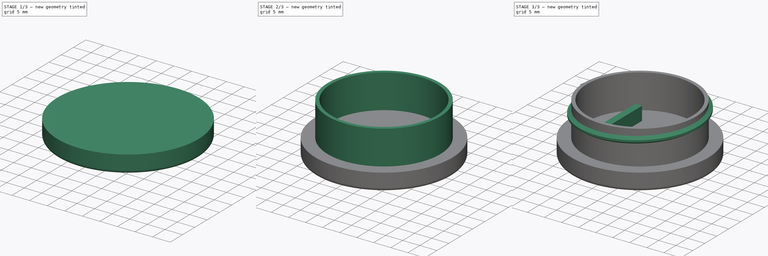
[diagram: build sequence overview — one tinted view per stage of 3, left to right]
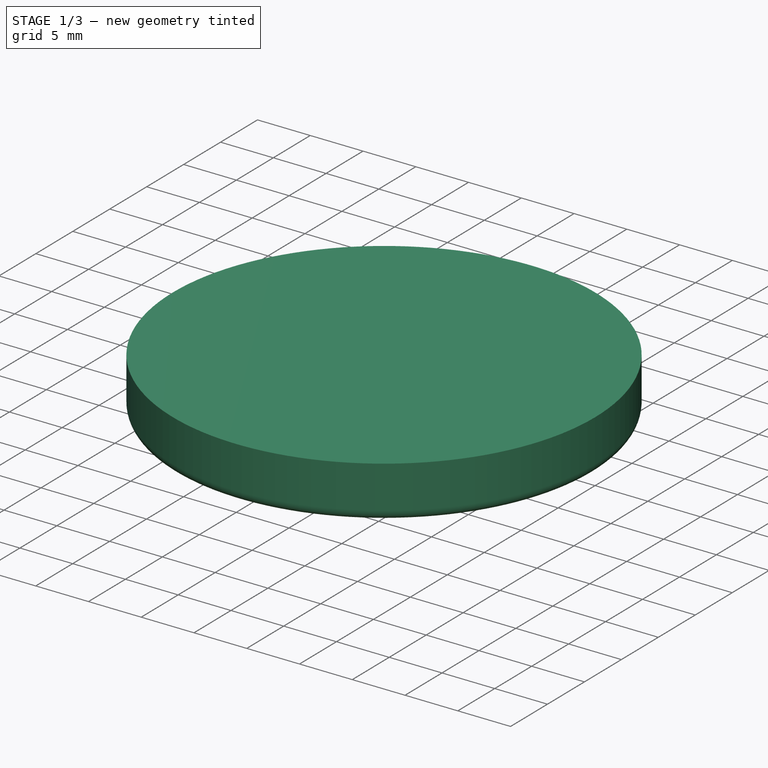
[diagram: stage 1 of 3 — iso view after this stage's code; geometry added in this stage tinted green]
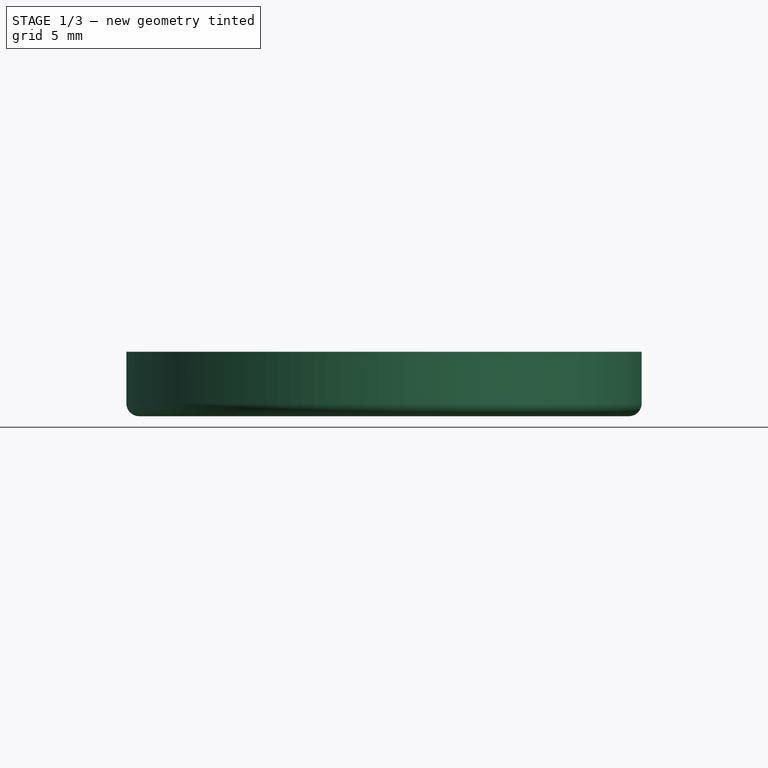
[diagram: stage 1 of 3 — front view after this stage's code; geometry added in this stage tinted green]
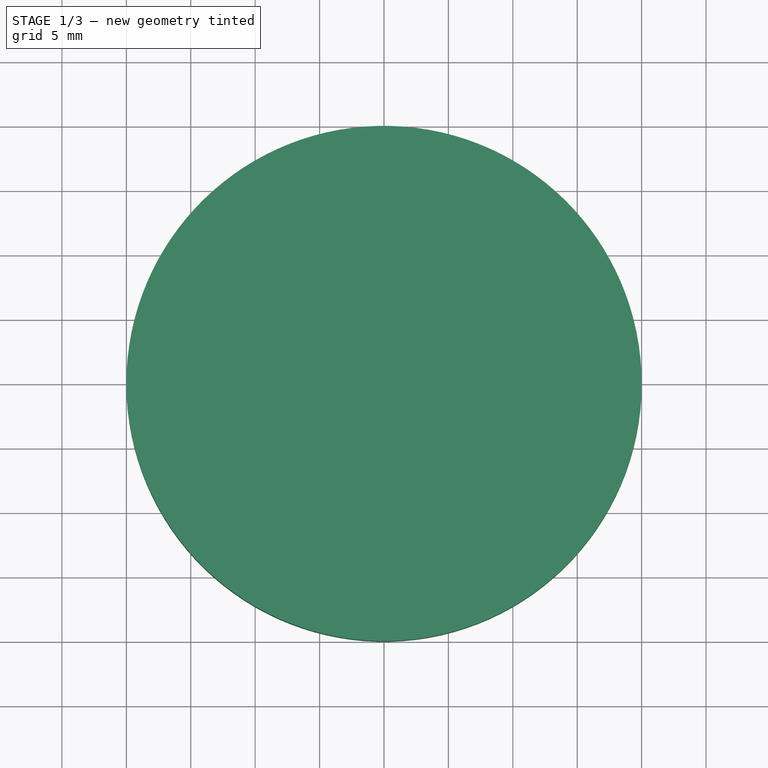
[diagram: stage 1 of 3 — top view after this stage's code; geometry added in this stage tinted green]
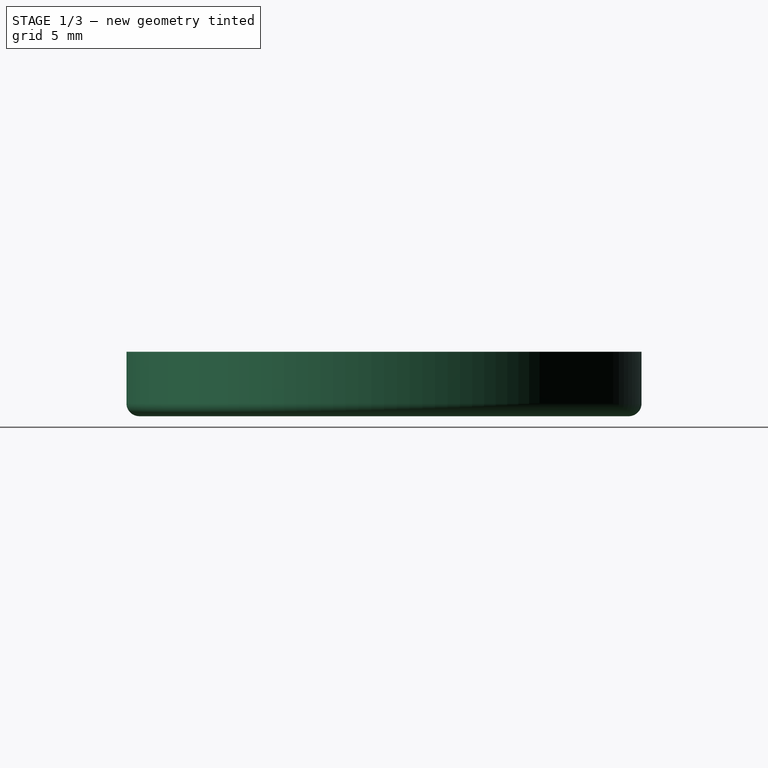
[diagram: stage 1 of 3 — right view after this stage's code; geometry added in this stage tinted green]
FCSTD DOCUMENT  (FreeCAD 0.20R29410 (Git))
Label: bikeHeadLightCap
License: All rights reserved
LicenseURL: http://en.wikipedia.org/wiki/All_rights_reserved
objects: Sketcher::SketchObject×4, PartDesign::Pad×3, PartDesign::Fillet×1, PartDesign::AdditiveHelix×1, PartDesign::Body×1, App::Part×1
note: 15 computed .brp shape members not serialized (recipe doc carries the construction recipe); baked Part::Feature solids carry a one-line shape summary decoded from their .brp

FEATURE [Sketcher::SketchObject] Sketch
  FullyConstrained = true
  MapMode = 5
  Support = -> [XY_Plane001]
  sketch-geometry (1):
    g0: Circle CenterX=0 CenterY=0 CenterZ=0 NormalX=0 NormalY=0 NormalZ=1 AngleXU=0 Radius=20
  constraints (2):
    c: Coincident(g0,g-1)
    c: Radius(g0) = 20
FEATURE [PartDesign::Pad] Pad
  Direction = (0,0,1)
  Length = 5
  Length2 = 10
  Profile = -> Sketch
  ReferenceAxis = -> Sketch [N_Axis]
  Type = 0
FEATURE [PartDesign::Fillet] Fillet
  Base = -> Pad [Edge2]
  BaseFeature = -> Pad
  Radius = 1
  SupportTransform = false
  UseAllEdges = false
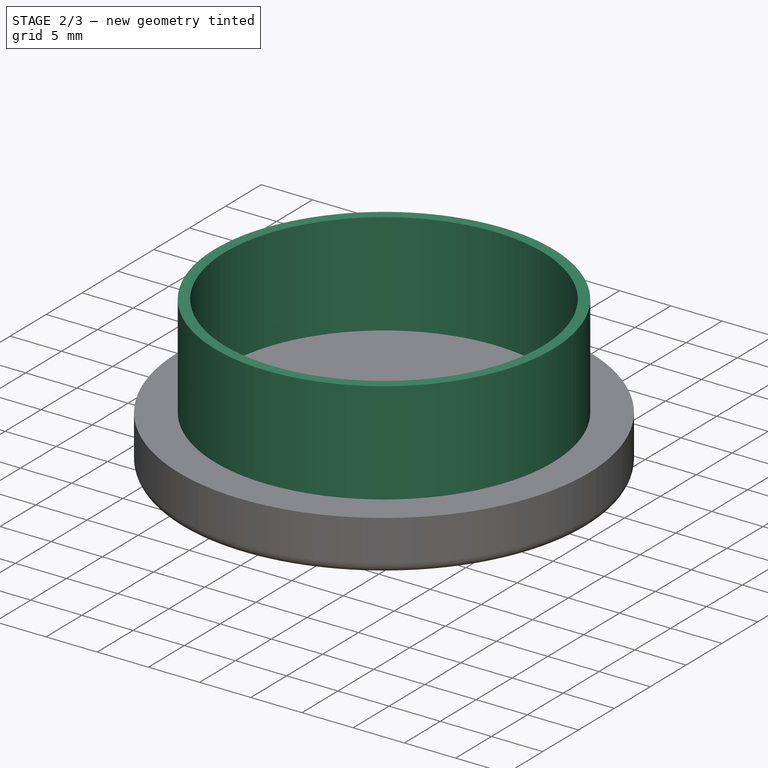
[diagram: stage 2 of 3 — iso view after this stage's code; geometry added in this stage tinted green]
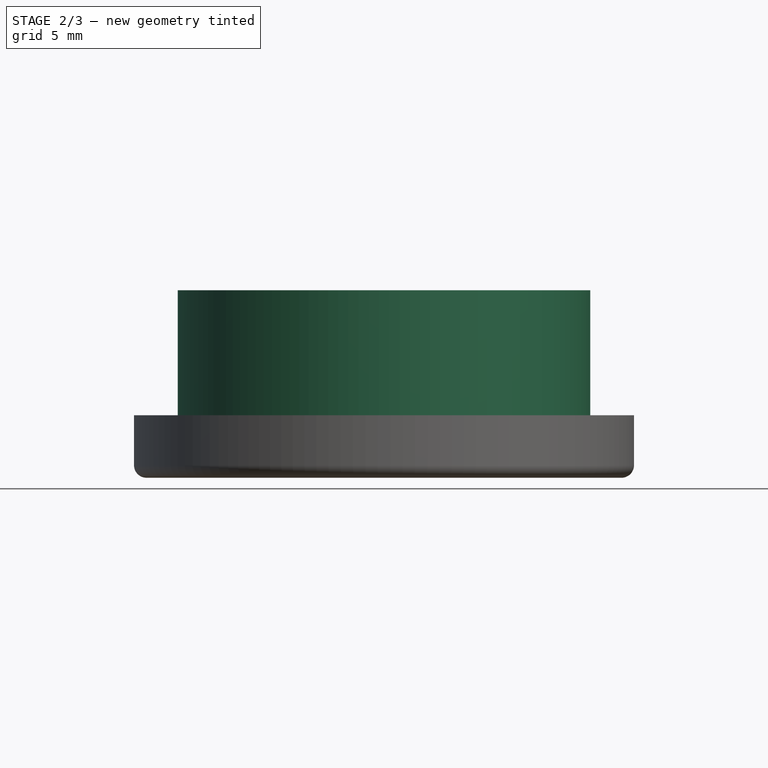
[diagram: stage 2 of 3 — front view after this stage's code; geometry added in this stage tinted green]
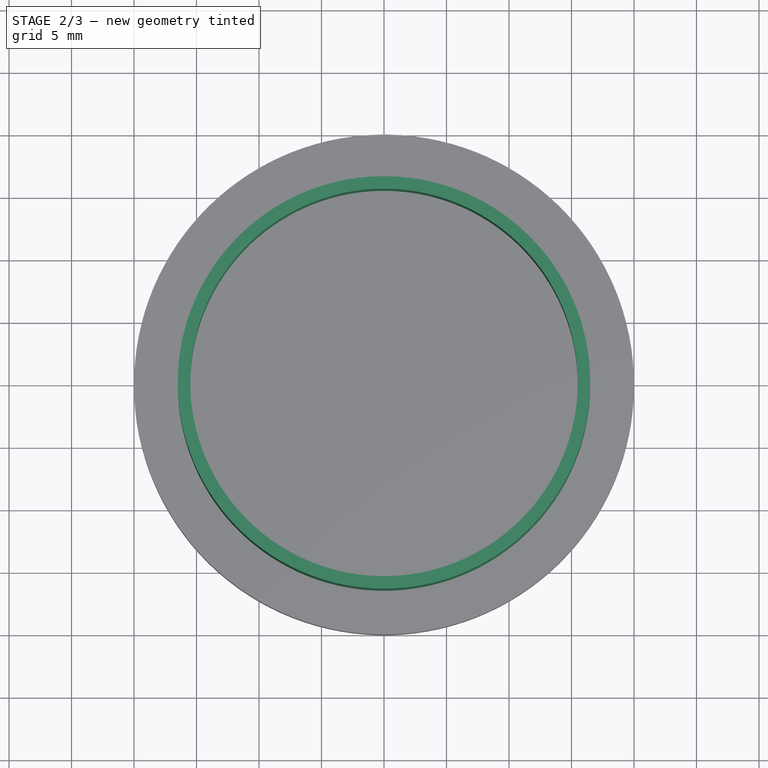
[diagram: stage 2 of 3 — top view after this stage's code; geometry added in this stage tinted green]
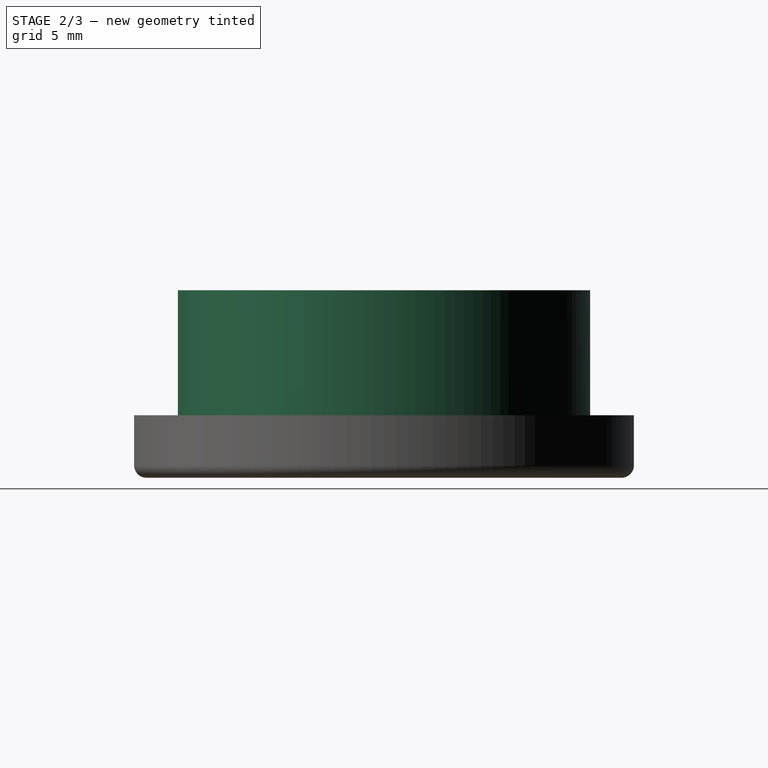
[diagram: stage 2 of 3 — right view after this stage's code; geometry added in this stage tinted green]
FEATURE [Sketcher::SketchObject] Sketch001
  FullyConstrained = true
  MapMode = 5
  Placement = pos=(0,0,5) rot=(0,0,1;0rad)
  Support = -> [Fillet]
  sketch-geometry (2):
    g0: Circle CenterX=0 CenterY=0 CenterZ=0 NormalX=0 NormalY=0 NormalZ=1 AngleXU=0 Radius=16.5
    g1: Circle CenterX=0 CenterY=0 CenterZ=0 NormalX=0 NormalY=0 NormalZ=1 AngleXU=0 Radius=15.5
  constraints (4):
    c: Coincident(g0,g-1)
    c: Coincident(g1,g0)
    c: Radius(g0) = 16.5
    c: Radius(g1) = 15.5
FEATURE [PartDesign::Pad] Pad001
  BaseFeature = -> Fillet
  Direction = (0,0,1)
  Length = 10
  Length2 = 10
  Profile = -> Sketch001
  ReferenceAxis = -> Sketch001 [N_Axis]
  Type = 0
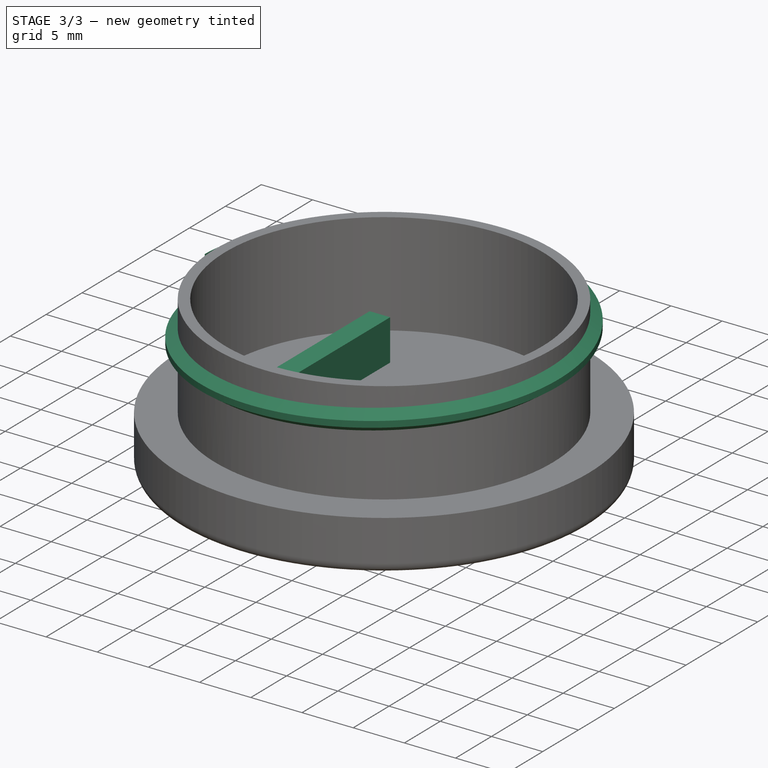
[diagram: stage 3 of 3 — iso view after this stage's code; geometry added in this stage tinted green]
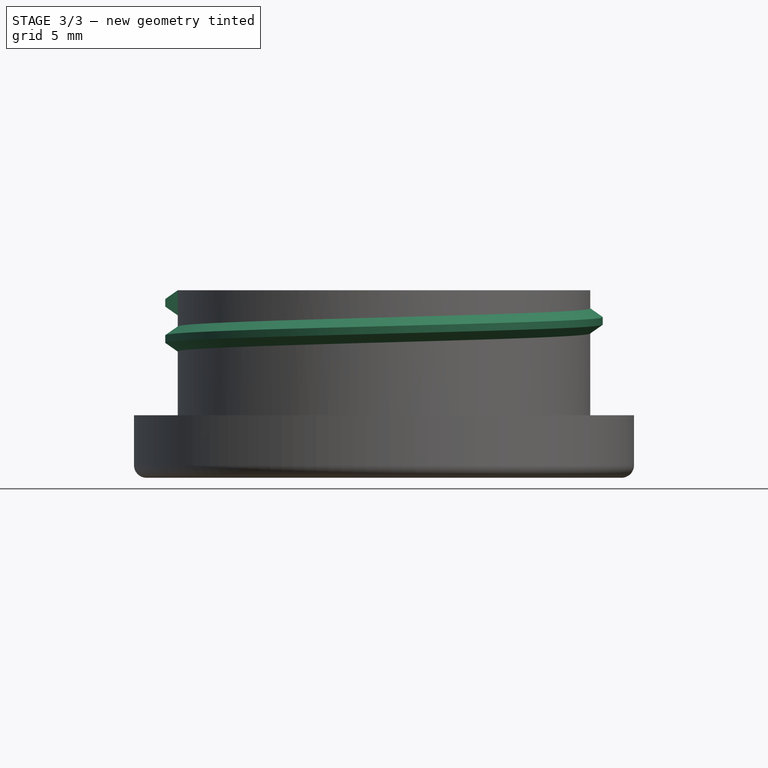
[diagram: stage 3 of 3 — front view after this stage's code; geometry added in this stage tinted green]
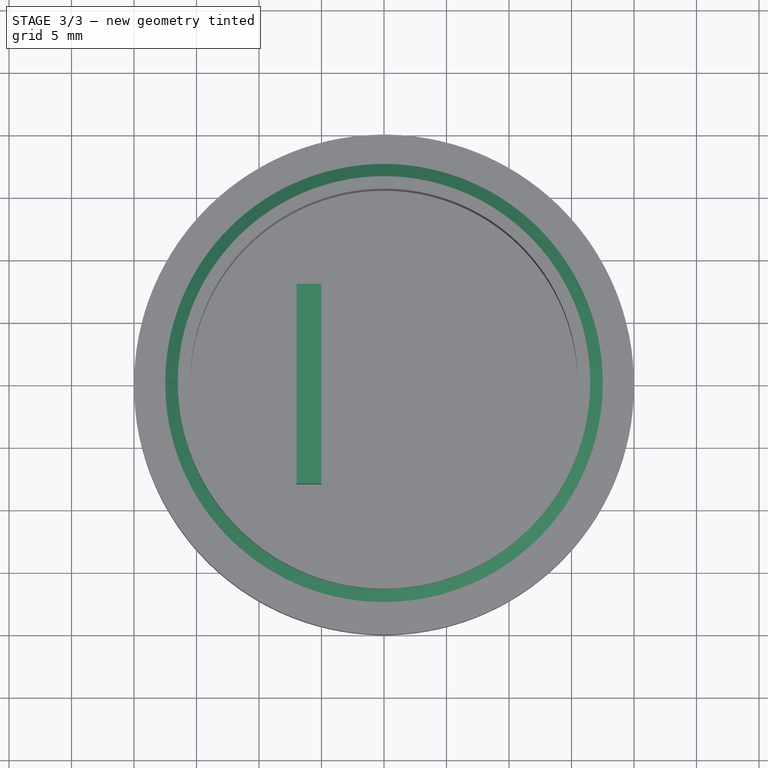
[diagram: stage 3 of 3 — top view after this stage's code; geometry added in this stage tinted green]
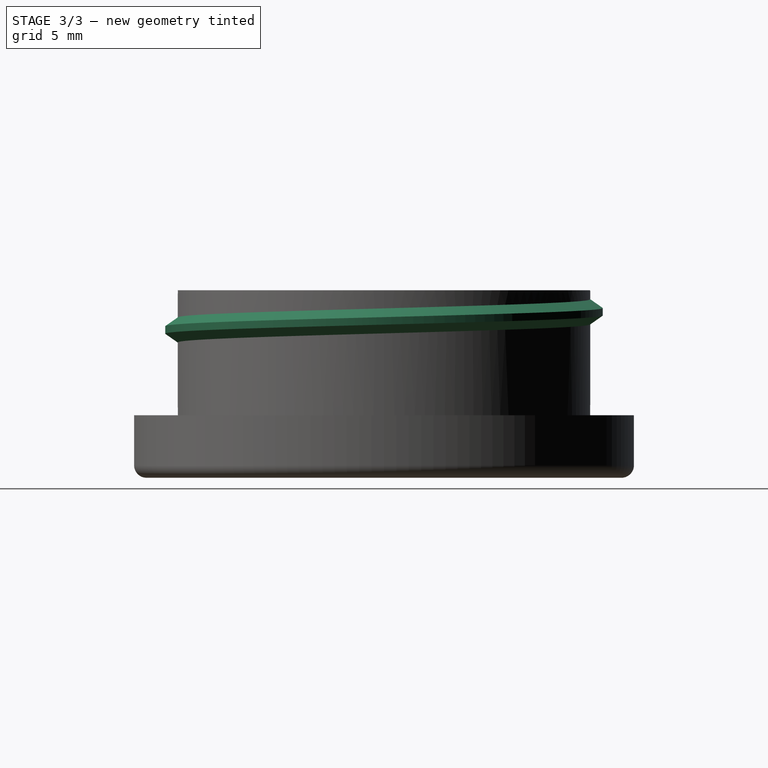
[diagram: stage 3 of 3 — right view after this stage's code; geometry added in this stage tinted green]
FEATURE [Sketcher::SketchObject] Sketch002
  FullyConstrained = true
  MapMode = 5
  Placement = pos=(0,0,0) rot=(1,0,0;1.5708rad)
  Support = -> [XZ_Plane001]
  sketch-geometry (4):
    g0: LineSegment StartX=-16.5 StartY=15 StartZ=0 EndX=-16.5 EndY=13 EndZ=0
    g1: LineSegment StartX=-16.5 StartY=15 StartZ=0 EndX=-17.5 EndY=14.3 EndZ=0
    g2: LineSegment StartX=-17.5 StartY=14.3 StartZ=0 EndX=-17.5 EndY=13.7 EndZ=0
    g3: LineSegment StartX=-17.5 StartY=13.7 StartZ=0 EndX=-16.5 EndY=13 EndZ=0
  constraints (12):
    c: Vertical(g2)
    c: Coincident(g2,g3)
    c: Coincident(g3,g0)
    c: Coincident(g0,g1)
    c: Coincident(g1,g2)
    c: Vertical(g0)
    c: DistanceY(g2,g2) = 0.6
    c: DistanceY(g0,g0) = 2
    c: DistanceY(g0,g2) = 0.7
    c: DistanceX(g2,g0) = 1
    c: DistanceX(g0,g-1) = 16.5
    c: DistanceY(g-1,g0) = 15
FEATURE [PartDesign::AdditiveHelix] AdditiveHelix
  Angle = 0
  Axis = (0,-2e-16,1)
  Base = (0,0,0)
  BaseFeature = -> Pad001
  Growth = 0
  HasBeenEdited = true
  Height = 3
  LeftHanded = false
  Mode = 0
  Outside = false
  Pitch = 2.9
  Profile = -> Sketch002
  ReferenceAxis = -> Sketch002 [V_Axis]
  Reversed = true
  Turns = 1.03448
FEATURE [Sketcher::SketchObject] Sketch003
  FullyConstrained = true
  MapMode = 5
  Placement = pos=(0,0,5) rot=(0,0,1;0rad)
  Support = -> [AdditiveHelix]
  sketch-geometry (4):
    g0: LineSegment StartX=-7 StartY=8 StartZ=0 EndX=-5 EndY=8 EndZ=0
    g1: LineSegment StartX=-5 StartY=8 StartZ=0 EndX=-5 EndY=-8 EndZ=0
    g2: LineSegment StartX=-5 StartY=-8 StartZ=0 EndX=-7 EndY=-8 EndZ=0
    g3: LineSegment StartX=-7 StartY=-8 StartZ=0 EndX=-7 EndY=8 EndZ=0
  constraints (12):
    c: Coincident(g0,g1)
    c: Coincident(g1,g2)
    c: Coincident(g2,g3)
    c: Coincident(g3,g0)
    c: Horizontal(g0)
    c: Horizontal(g2)
    c: Vertical(g1)
    c: Vertical(g3)
    c: DistanceX(g0,g0) = 2
    c: DistanceY(g3,g3) = 16
    c: DistanceX(g0,g-1) = 5
    c: DistanceY(g1,g-1) = 8
FEATURE [PartDesign::Pad] Pad002
  BaseFeature = -> AdditiveHelix
  Direction = (0,0,1)
  Length = 4
  Length2 = 10
  Profile = -> Sketch003
  ReferenceAxis = -> Sketch003 [N_Axis]
  Type = 0
FEATURE [PartDesign::Body] Body
  Group = -> [Sketch,Pad,Fillet,Sketch001,Pad001,Sketch002,AdditiveHelix,Sketch003,Pad002]
  Origin = -> Origin001
  Tip = -> Pad002
FEATURE [App::Part] Part
  Group = -> [Body]
  Origin = -> Origin
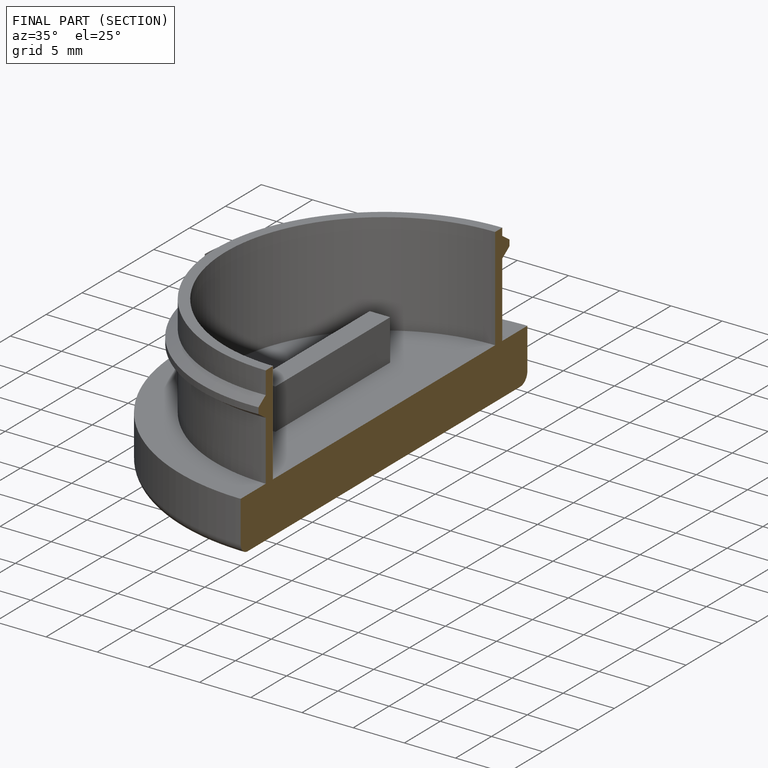
[diagram: finished part — half-section view (interior)]
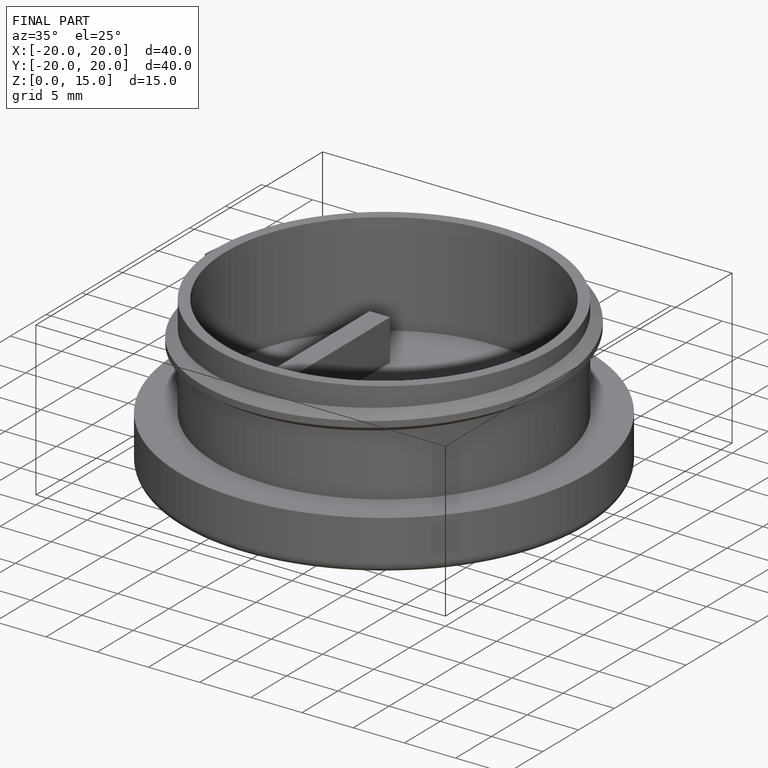
[diagram: finished part — iso view with bounding-box wireframe]
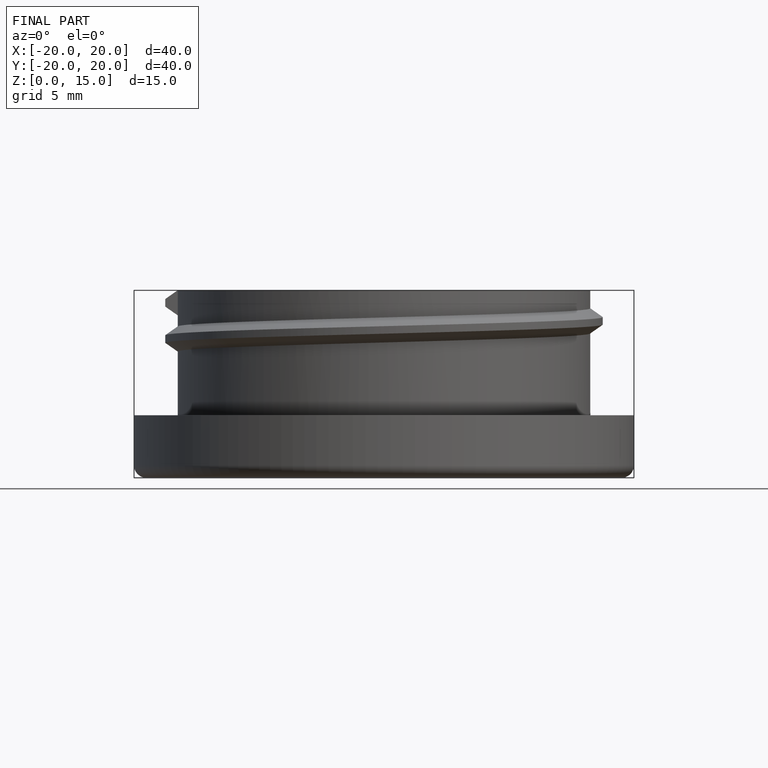
[diagram: finished part — front view with bounding-box wireframe]
